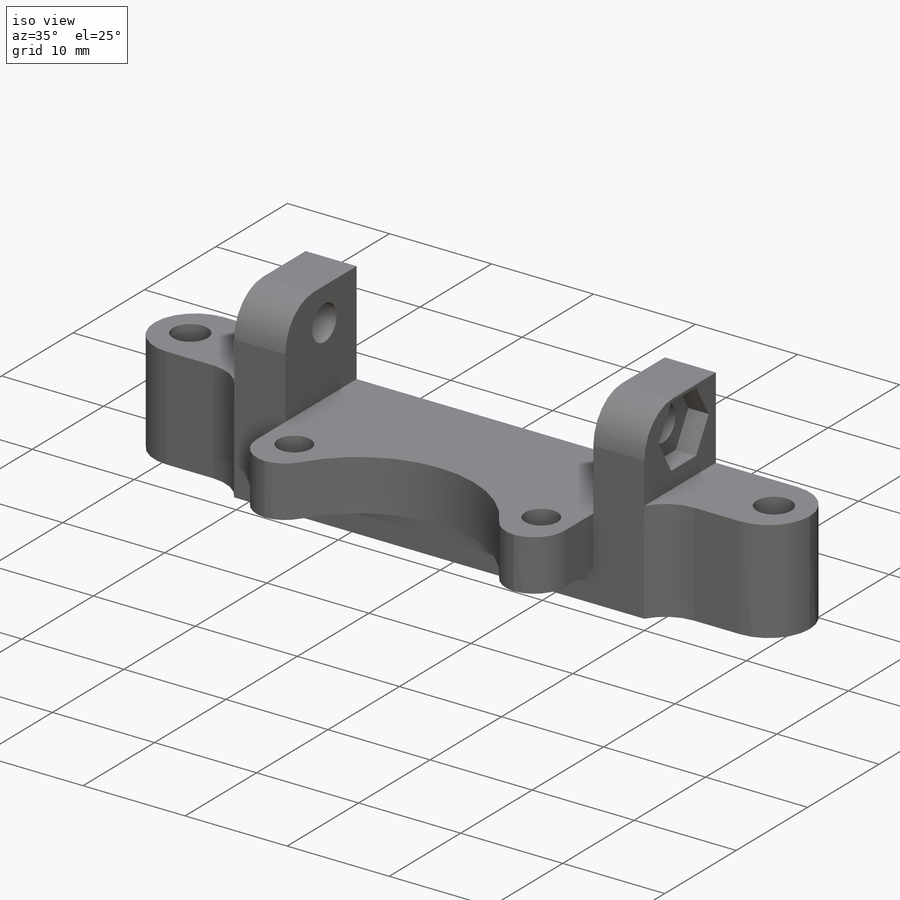
[diagram: iso view]
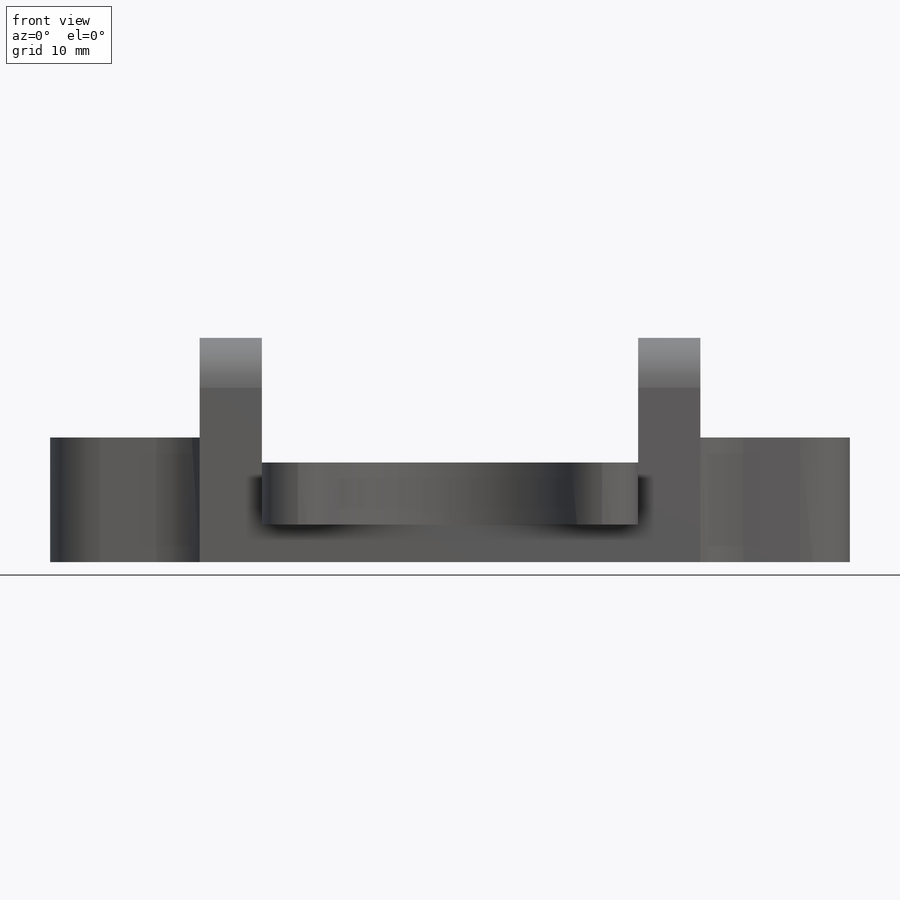
[diagram: front view]
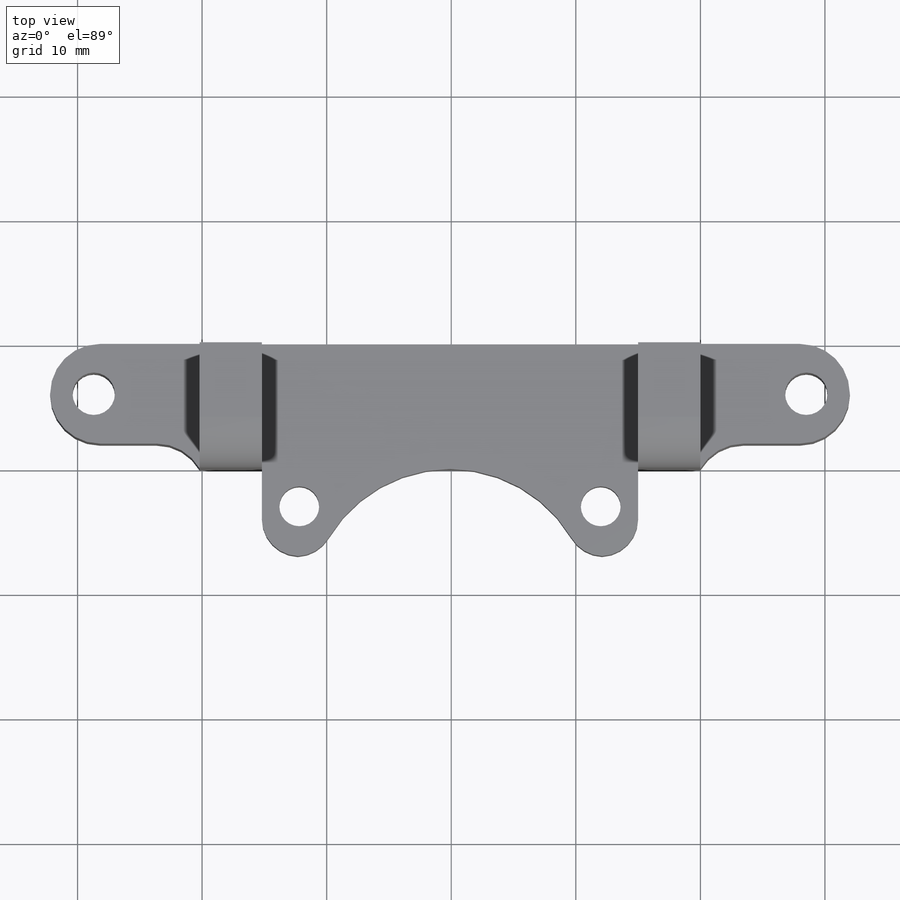
[diagram: top view]
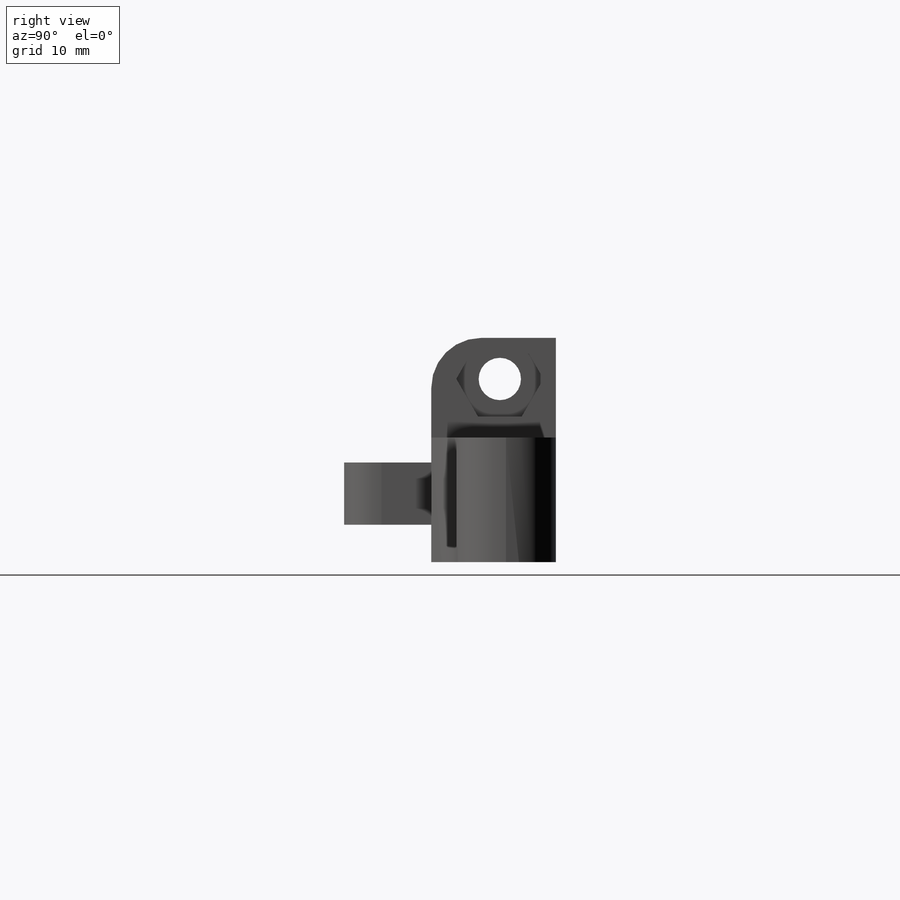
[diagram: right view]
SOLIDWORKS PART (.sldprt)
format: sldprt  version: not decoded by parser v0  size: 320,512 bytes
history: native  units: mm
features: sketch x10, cut_extrude x7, fillet x4, plane x3, extrude x3, material x1 (+8 scaffold rows collapsed)
feature tree (36):
  scaffold x8  (default folders/planes/origin — collapsed)
  material  "Matériau <non spécifié>"
  plane  "Plan de face"
  plane  "Plan de dessus"
  plane  "Plan de droite"
  sketch  "Esquisse1"  dims[D1=30.2mm D2=5.0mm D3=5.0mm D4=10.0mm D5=10.0mm D6=8.0mm]
  extrude  "Boss.-Extru.1"  Depth=10mm
  sketch  "Esquisse2"  dims[D1=5.0mm]
  extrude  "Boss.-Extru.2"  Depth=9mm
  sketch  "Esquisse3"  dims[D1=4.0mm D2=4.0mm]
  cut_extrude  "Enlèv. mat.-Extru.1"  [1 undecoded]
  sketch  "Esquisse4"  dims[D5=3.2mm D6=3.2mm D1=3.0mm D2=3.0mm D3=3.0mm D4=3.0mm]
  cut_extrude  "Enlèv. mat.-Extru.2"  [1 undecoded]
  sketch  "Esquisse5"  dims[D1=2.0mm]
  cut_extrude  "Enlèv. mat.-Extru.3"  [1 undecoded]
  fillet  "Congé2"  Radius=3mm
  sketch  "Esquisse6"  dims[D1=8.0mm D2=12.0mm D3=8.0mm D4=12.0mm]
  extrude  "Boss.-Extru.3"  Depth=10mm
  sketch  "Esquisse7"  dims[D1=3.4mm D2=3.4mm D3=4.0mm D4=3.5mm D5=4.0mm D6=3.5mm]
  cut_extrude  "Enlèv. mat.-Extru.4"  [1 undecoded]
  fillet  "Congé3"  Radius=4mm
  sketch  "Esquisse8"  dims[D3=3.4mm D1=6.7mm D2=5.5mm]
  cut_extrude  "Enlèv. mat.-Extru.5"  [1 undecoded]
  sketch  "Esquisse9"  dims[D1=6.0mm]
  cut_extrude  "Enlèv. mat.-Extru.6"  Depth=2mm
  sketch  "Esquisse10"  dims[D1=7.0mm]
  cut_extrude  "Enlèv. mat.-Extru.7"  Depth=2mm
  fillet  "Congé4"  Radius=4mm
  fillet  "Congé5"  Radius=4mm
decode coverage: 19 of 24 modeling features carry decoded parameters
note: 5 parameter values undecoded
summary: no parameter record found for 5 features
note: suppression state not decoded; provenance and decode notes live in map.json
